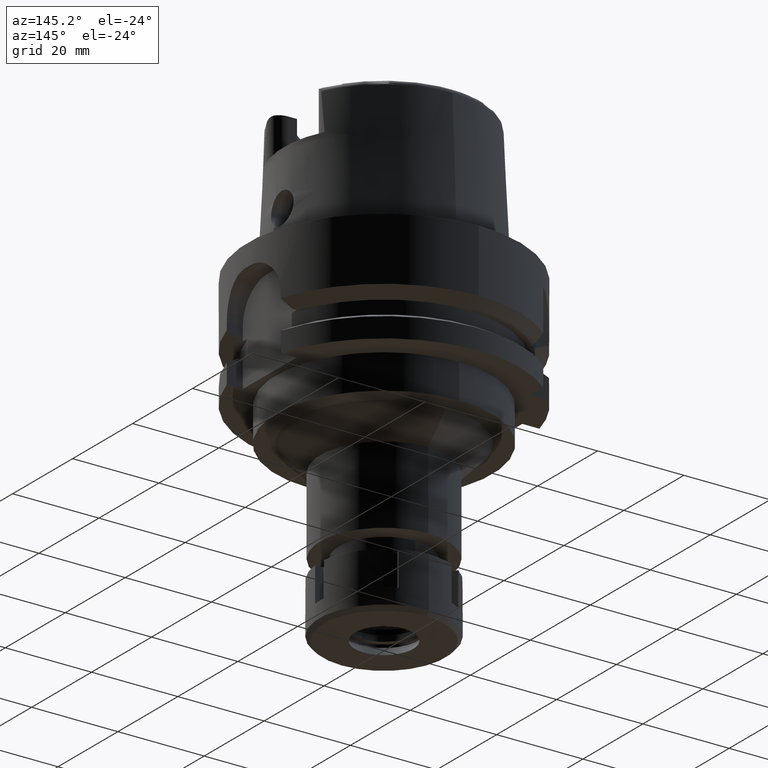
[diagram: clean part render]
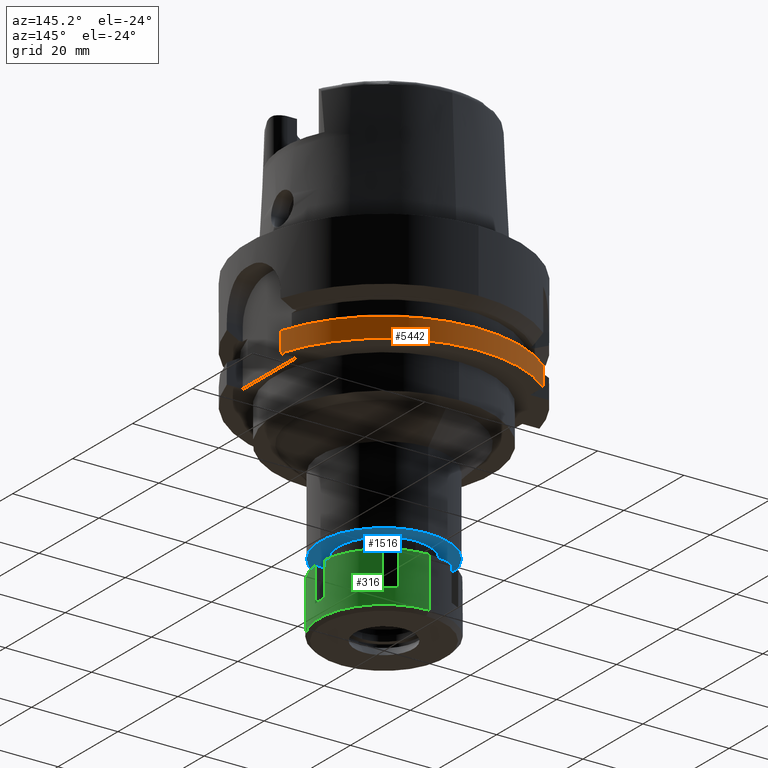
[diagram: same view with three faces highlighted in distinct colors, each labeled with its STEP entity id]
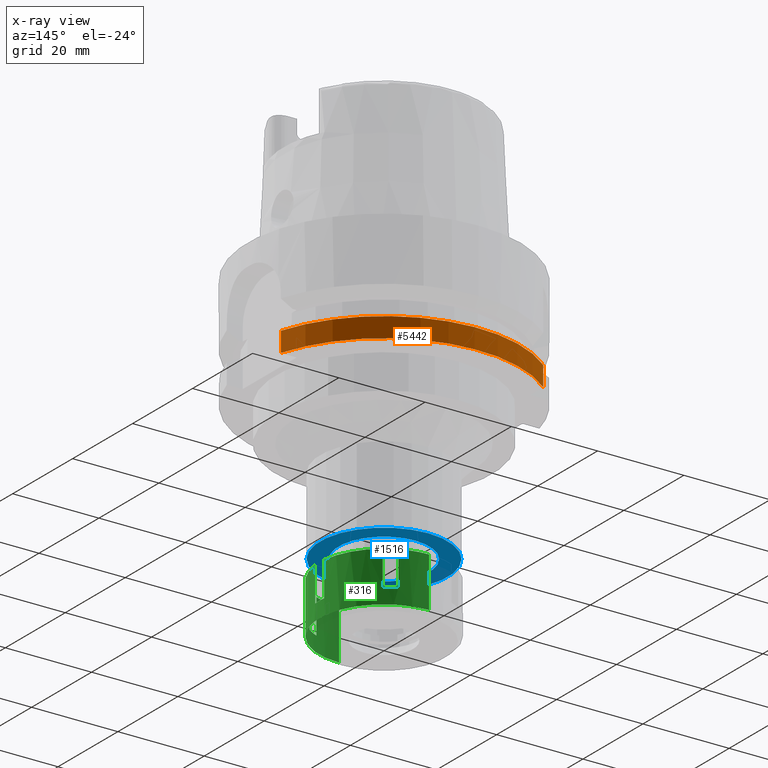
[diagram: x-ray of the same camera — body ghosted, the three highlighted faces saturated]
A machine part, auxiliary view with three faces highlighted in distinct colors.
The next image is the same camera in x-ray (body ghosted, the three faces saturated) — at least one of them is partly hidden behind the body in this view.
Their STEP definitions:

[orange] entity #5442 — the highlighted cylindrical surface (partial cylindrical patch) has radius 31.5 mm, axis along (0, 0, -1).
#144 = AXIS2_PLACEMENT_3D ( 'NONE', #3760, #3310, #4704 ) ;
#691 = VERTEX_POINT ( 'NONE', #5669 ) ;
#869 = VECTOR ( 'NONE', #5266, 1000.000000000000114 ) ;
#953 = DIRECTION ( 'NONE',  ( 0.0000000000000000000, 1.000000000000000000, 0.0000000000000000000 ) ) ;
#1010 = VERTEX_POINT ( 'NONE', #4994 ) ;
#1134 = LINE ( 'NONE', #5884, #1245 ) ;
#1245 = VECTOR ( 'NONE', #3486, 1000.000000000000114 ) ;
#1288 = FACE_OUTER_BOUND ( 'NONE', #3707, .T. ) ;
#1341 = AXIS2_PLACEMENT_3D ( 'NONE', #4342, #5391, #953 ) ;
#1584 = ORIENTED_EDGE ( 'NONE', *, *, #2673, .F. ) ;
#1610 = ORIENTED_EDGE ( 'NONE', *, *, #5441, .T. ) ;
#1669 = ORIENTED_EDGE ( 'NONE', *, *, #2370, .T. ) ;
#1705 = VERTEX_POINT ( 'NONE', #3521 ) ;
#1823 = DIRECTION ( 'NONE',  ( 0.0000000000000000000, 0.0000000000000000000, -1.000000000000000000 ) ) ;
#2370 = EDGE_CURVE ( 'NONE', #691, #1010, #3781, .T. ) ;
#2589 = AXIS2_PLACEMENT_3D ( 'NONE', #6151, #1823, #6175 ) ;
#2673 = EDGE_CURVE ( 'NONE', #691, #5131, #1134, .T. ) ;
#3310 = DIRECTION ( 'NONE',  ( 0.0000000000000000000, 0.0000000000000000000, -1.000000000000000000 ) ) ;
#3461 = LINE ( 'NONE', #6195, #869 ) ;
#3486 = DIRECTION ( 'NONE',  ( 9.636716617729993918E-09, -3.232221676920998126E-08, 0.9999999999999994449 ) ) ;
#3521 = CARTESIAN_POINT ( 'NONE',  ( -19.99999697716999947, 24.33618953150000053, -21.37748823999999814 ) ) ;
#3707 = EDGE_LOOP ( 'NONE', ( #1610, #1584, #1669, #3764 ) ) ;
#3760 = CARTESIAN_POINT ( 'NONE',  ( 0.0000000000000000000, 1.677766114831999956E-14, 37.00000000000000000 ) ) ;
#3764 = ORIENTED_EDGE ( 'NONE', *, *, #4760, .F. ) ;
#3781 = CIRCLE ( 'NONE', #1341, 31.50000000000000000 ) ;
#4342 = CARTESIAN_POINT ( 'NONE',  ( 0.0000000000000000000, 1.677766114831999956E-14, -26.00000000000000000 ) ) ;
#4704 = DIRECTION ( 'NONE',  ( 0.0000000000000000000, -1.000000000000000000, 0.0000000000000000000 ) ) ;
#4760 = EDGE_CURVE ( 'NONE', #1705, #1010, #3461, .T. ) ;
#4994 = CARTESIAN_POINT ( 'NONE',  ( -20.00000000000000000, 24.33618704727999926, -26.00000000000000000 ) ) ;
#5131 = VERTEX_POINT ( 'NONE', #5132 ) ;
#5132 = CARTESIAN_POINT ( 'NONE',  ( 30.18691774079000112, 8.999999850590000960, -21.37749786974000088 ) ) ;
#5266 = DIRECTION ( 'NONE',  ( -6.539363271905267819E-07, -5.374187853484219113E-07, -0.9999999999996417310 ) ) ;
#5391 = DIRECTION ( 'NONE',  ( 0.0000000000000000000, 0.0000000000000000000, 1.000000000000000000 ) ) ;
#5441 = EDGE_CURVE ( 'NONE', #1705, #5131, #6019, .T. ) ;
#5442 = ADVANCED_FACE ( 'NONE', ( #1288 ), #5714, .T. ) ;
#5669 = CARTESIAN_POINT ( 'NONE',  ( 30.18691769625000276, 9.000000000000000000, -26.00000000000000000 ) ) ;
#5714 = CYLINDRICAL_SURFACE ( 'NONE', #144, 31.50000000000000000 ) ;
#5884 = CARTESIAN_POINT ( 'NONE',  ( 30.18691769625000276, 9.000000000000000000, -26.00000000000000000 ) ) ;
#6019 = CIRCLE ( 'NONE', #2589, 31.50000000000000711 ) ;
#6151 = CARTESIAN_POINT ( 'NONE',  ( 0.0000000000000000000, 0.0000000000000000000, -21.37749907476000288 ) ) ;
#6175 = DIRECTION ( 'NONE',  ( -0.6349206349206079070, 0.7725773665802099233, 0.0000000000000000000 ) ) ;
#6195 = CARTESIAN_POINT ( 'NONE',  ( -19.99999697716999947, 24.33618953150000053, -21.37748823999999814 ) ) ;

[blue] entity #1516 — the highlighted planar face has unit normal (0, 0, -1).
#138 = EDGE_LOOP ( 'NONE', ( #1103, #1366 ) ) ;
#240 = DIRECTION ( 'NONE',  ( 0.0000000000000000000, 0.0000000000000000000, -1.000000000000000000 ) ) ;
#637 = AXIS2_PLACEMENT_3D ( 'NONE', #2451, #1535, #5406 ) ;
#697 = CARTESIAN_POINT ( 'NONE',  ( 0.0000000000000000000, -10.50000000000000000, -58.00000000000000000 ) ) ;
#716 = DIRECTION ( 'NONE',  ( 0.0000000000000000000, 0.0000000000000000000, -1.000000000000000000 ) ) ;
#1041 = AXIS2_PLACEMENT_3D ( 'NONE', #2817, #3349, #4772 ) ;
#1103 = ORIENTED_EDGE ( 'NONE', *, *, #2065, .F. ) ;
#1366 = ORIENTED_EDGE ( 'NONE', *, *, #2985, .F. ) ;
#1498 = CARTESIAN_POINT ( 'NONE',  ( 0.0000000000000000000, 10.50000000000000000, -58.00000000000000000 ) ) ;
#1516 = ADVANCED_FACE ( 'NONE', ( #3294, #3354 ), #5230, .T. ) ;
#1535 = DIRECTION ( 'NONE',  ( 0.0000000000000000000, 0.0000000000000000000, 1.000000000000000000 ) ) ;
#1553 = CIRCLE ( 'NONE', #1041, 14.75000000000000000 ) ;
#2059 = AXIS2_PLACEMENT_3D ( 'NONE', #6160, #240, #3650 ) ;
#2065 = EDGE_CURVE ( 'NONE', #3091, #3037, #3679, .T. ) ;
#2236 = ORIENTED_EDGE ( 'NONE', *, *, #3853, .F. ) ;
#2258 = CIRCLE ( 'NONE', #2059, 10.50000000000000000 ) ;
#2431 = CARTESIAN_POINT ( 'NONE',  ( 0.0000000000000000000, 14.75000000000000000, -58.00000000000000000 ) ) ;
#2444 = EDGE_LOOP ( 'NONE', ( #4243, #2236 ) ) ;
#2451 = CARTESIAN_POINT ( 'NONE',  ( 0.0000000000000000000, 1.677766114831999956E-14, -58.00000000000000000 ) ) ;
#2609 = VERTEX_POINT ( 'NONE', #697 ) ;
#2817 = CARTESIAN_POINT ( 'NONE',  ( 0.0000000000000000000, 1.677766114831999956E-14, -58.00000000000000000 ) ) ;
#2842 = EDGE_CURVE ( 'NONE', #6192, #2609, #2258, .T. ) ;
#2888 = CARTESIAN_POINT ( 'NONE',  ( 0.0000000000000000000, 0.0000000000000000000, -58.00000000000000000 ) ) ;
#2985 = EDGE_CURVE ( 'NONE', #3037, #3091, #1553, .T. ) ;
#3037 = VERTEX_POINT ( 'NONE', #5351 ) ;
#3091 = VERTEX_POINT ( 'NONE', #2431 ) ;
#3154 = DIRECTION ( 'NONE',  ( 0.0000000000000000000, -1.000000000000000000, 0.0000000000000000000 ) ) ;
#3294 = FACE_OUTER_BOUND ( 'NONE', #138, .T. ) ;
#3349 = DIRECTION ( 'NONE',  ( 0.0000000000000000000, 0.0000000000000000000, 1.000000000000000000 ) ) ;
#3354 = FACE_BOUND ( 'NONE', #2444, .T. ) ;
#3487 = AXIS2_PLACEMENT_3D ( 'NONE', #4674, #716, #3154 ) ;
#3650 = DIRECTION ( 'NONE',  ( 0.0000000000000000000, 1.000000000000000000, 0.0000000000000000000 ) ) ;
#3679 = CIRCLE ( 'NONE', #637, 14.75000000000000000 ) ;
#3853 = EDGE_CURVE ( 'NONE', #2609, #6192, #5306, .T. ) ;
#4243 = ORIENTED_EDGE ( 'NONE', *, *, #2842, .F. ) ;
#4674 = CARTESIAN_POINT ( 'NONE',  ( 0.0000000000000000000, 1.677766114831999956E-14, -58.00000000000000000 ) ) ;
#4772 = DIRECTION ( 'NONE',  ( 0.0000000000000000000, -1.000000000000000000, 0.0000000000000000000 ) ) ;
#4869 = DIRECTION ( 'NONE',  ( 0.0000000000000000000, 0.0000000000000000000, -1.000000000000000000 ) ) ;
#5230 = PLANE ( 'NONE',  #5428 ) ;
#5261 = DIRECTION ( 'NONE',  ( 0.0000000000000000000, -1.000000000000000000, 0.0000000000000000000 ) ) ;
#5306 = CIRCLE ( 'NONE', #3487, 10.50000000000000000 ) ;
#5351 = CARTESIAN_POINT ( 'NONE',  ( 0.0000000000000000000, -14.75000000000000000, -58.00000000000000000 ) ) ;
#5406 = DIRECTION ( 'NONE',  ( 0.0000000000000000000, 1.000000000000000000, 0.0000000000000000000 ) ) ;
#5428 = AXIS2_PLACEMENT_3D ( 'NONE', #2888, #4869, #5261 ) ;
#6160 = CARTESIAN_POINT ( 'NONE',  ( 0.0000000000000000000, 1.677766114831999956E-14, -58.00000000000000000 ) ) ;
#6192 = VERTEX_POINT ( 'NONE', #1498 ) ;

[green] entity #316 — the highlighted cylindrical surface (partial cylindrical patch) has radius 15 mm, axis along (0, 0, -1).
#33 = CYLINDRICAL_SURFACE ( 'NONE', #4639, 15.00000000000000000 ) ;
#192 = VERTEX_POINT ( 'NONE', #229 ) ;
#229 = CARTESIAN_POINT ( 'NONE',  ( 0.0000000000000000000, -15.00000000000000000, 0.0000000000000000000 ) ) ;
#246 = CARTESIAN_POINT ( 'NONE',  ( 14.92481155659999992, 1.500000000000000000, -8.000000000000000000 ) ) ;
#281 = DIRECTION ( 'NONE',  ( 0.0000000000000000000, 0.0000000000000000000, -1.000000000000000000 ) ) ;
#300 = ORIENTED_EDGE ( 'NONE', *, *, #946, .F. ) ;
#307 = VERTEX_POINT ( 'NONE', #3761 ) ;
#314 = ORIENTED_EDGE ( 'NONE', *, *, #5358, .T. ) ;
#316 = ADVANCED_FACE ( 'NONE', ( #1601 ), #33, .T. ) ;
#337 = VERTEX_POINT ( 'NONE', #4637 ) ;
#344 = ORIENTED_EDGE ( 'NONE', *, *, #5500, .T. ) ;
#387 = CARTESIAN_POINT ( 'NONE',  ( 0.0000000000000000000, 0.0000000000000000000, -11.59999999999999964 ) ) ;
#412 = ORIENTED_EDGE ( 'NONE', *, *, #2491, .F. ) ;
#465 = VECTOR ( 'NONE', #3547, 1000.000000000000000 ) ;
#590 = CARTESIAN_POINT ( 'NONE',  ( 0.0000000000000000000, 0.0000000000000000000, 0.0000000000000000000 ) ) ;
#627 = ORIENTED_EDGE ( 'NONE', *, *, #3482, .T. ) ;
#653 = DIRECTION ( 'NONE',  ( 0.0000000000000000000, 0.0000000000000000000, -1.000000000000000000 ) ) ;
#654 = CARTESIAN_POINT ( 'NONE',  ( 0.0000000000000000000, 0.0000000000000000000, 0.0000000000000000000 ) ) ;
#710 = EDGE_CURVE ( 'NONE', #192, #2463, #2309, .T. ) ;
#820 = VERTEX_POINT ( 'NONE', #1105 ) ;
#838 = DIRECTION ( 'NONE',  ( 0.0000000000000000000, 0.0000000000000000000, 1.000000000000000000 ) ) ;
#876 = AXIS2_PLACEMENT_3D ( 'NONE', #3055, #653, #2585 ) ;
#943 = VECTOR ( 'NONE', #3326, 1000.000000000000000 ) ;
#946 = EDGE_CURVE ( 'NONE', #4432, #3507, #3418, .T. ) ;
#1037 = CARTESIAN_POINT ( 'NONE',  ( 8.761443883976001601, -12.17526595470999951, -8.000000000000000000 ) ) ;
#1046 = DIRECTION ( 'NONE',  ( 0.5840962589317197917, 0.8116843969807286951, 0.0000000000000000000 ) ) ;
#1064 = ORIENTED_EDGE ( 'NONE', *, *, #1217, .F. ) ;
#1082 = AXIS2_PLACEMENT_3D ( 'NONE', #2474, #5890, #4409 ) ;
#1105 = CARTESIAN_POINT ( 'NONE',  ( 6.163367672623000004, 13.67526595470999951, -8.000000000000000000 ) ) ;
#1176 = VECTOR ( 'NONE', #5353, 1000.000000000000000 ) ;
#1217 = EDGE_CURVE ( 'NONE', #337, #5757, #2591, .T. ) ;
#1257 = CIRCLE ( 'NONE', #5903, 15.00000000000000000 ) ;
#1276 = ORIENTED_EDGE ( 'NONE', *, *, #6214, .T. ) ;
#1284 = AXIS2_PLACEMENT_3D ( 'NONE', #3947, #1463, #1046 ) ;
#1300 = CARTESIAN_POINT ( 'NONE',  ( 0.0000000000000000000, -15.00000000000000000, 0.0000000000000000000 ) ) ;
#1316 = CARTESIAN_POINT ( 'NONE',  ( 0.0000000000000000000, 0.0000000000000000000, 0.0000000000000000000 ) ) ;
#1322 = VERTEX_POINT ( 'NONE', #1391 ) ;
#1391 = CARTESIAN_POINT ( 'NONE',  ( 14.92481155659999992, 1.500000000000000000, 0.0000000000000000000 ) ) ;
#1412 = DIRECTION ( 'NONE',  ( 0.9949874371066197432, -0.1000000000000019623, 0.0000000000000000000 ) ) ;
#1463 = DIRECTION ( 'NONE',  ( 0.0000000000000000000, 0.0000000000000000000, -1.000000000000000000 ) ) ;
#1470 = CARTESIAN_POINT ( 'NONE',  ( 8.761443883976001601, 12.17526595470999951, -8.000000000000000000 ) ) ;
#1493 = LINE ( 'NONE', #5362, #4378 ) ;
#1593 = CARTESIAN_POINT ( 'NONE',  ( 8.761443883976001601, 12.17526595470999951, 0.0000000000000000000 ) ) ;
#1601 = FACE_OUTER_BOUND ( 'NONE', #5968, .T. ) ;
#1614 = EDGE_CURVE ( 'NONE', #3569, #5535, #5948, .T. ) ;
#1683 = VECTOR ( 'NONE', #6061, 1000.000000000000000 ) ;
#1745 = EDGE_CURVE ( 'NONE', #3327, #2079, #4523, .T. ) ;
#1821 = ORIENTED_EDGE ( 'NONE', *, *, #1614, .F. ) ;
#1824 = DIRECTION ( 'NONE',  ( 0.5840962589317860720, -0.8116843969806811776, 0.0000000000000000000 ) ) ;
#1829 = CARTESIAN_POINT ( 'NONE',  ( 0.0000000000000000000, 15.00000000000000000, 0.0000000000000000000 ) ) ;
#1882 = AXIS2_PLACEMENT_3D ( 'NONE', #1316, #1888, #1412 ) ;
#1888 = DIRECTION ( 'NONE',  ( 0.0000000000000000000, 0.0000000000000000000, -1.000000000000000000 ) ) ;
#1921 = EDGE_CURVE ( 'NONE', #307, #192, #3162, .T. ) ;
#1929 = CARTESIAN_POINT ( 'NONE',  ( 0.0000000000000000000, 15.00000000000000000, 0.0000000000000000000 ) ) ;
#2028 = CARTESIAN_POINT ( 'NONE',  ( 6.163367672621999915, -13.67526595470999951, -8.000000000000000000 ) ) ;
#2039 = DIRECTION ( 'NONE',  ( 0.0000000000000000000, 0.0000000000000000000, -1.000000000000000000 ) ) ;
#2045 = DIRECTION ( 'NONE',  ( 0.0000000000000000000, 0.0000000000000000000, -1.000000000000000000 ) ) ;
#2064 = AXIS2_PLACEMENT_3D ( 'NONE', #5514, #281, #5955 ) ;
#2079 = VERTEX_POINT ( 'NONE', #2996 ) ;
#2184 = CIRCLE ( 'NONE', #1882, 15.00000000000000533 ) ;
#2235 = ORIENTED_EDGE ( 'NONE', *, *, #6189, .T. ) ;
#2309 = LINE ( 'NONE', #1300, #3328 ) ;
#2358 = ORIENTED_EDGE ( 'NONE', *, *, #3524, .T. ) ;
#2394 = VECTOR ( 'NONE', #5032, 1000.000000000000000 ) ;
#2405 = EDGE_CURVE ( 'NONE', #3539, #1322, #5791, .T. ) ;
#2411 = CARTESIAN_POINT ( 'NONE',  ( 0.0000000000000000000, -15.00000000000000000, -11.59999999999999964 ) ) ;
#2448 = AXIS2_PLACEMENT_3D ( 'NONE', #654, #2045, #3927 ) ;
#2463 = VERTEX_POINT ( 'NONE', #2411 ) ;
#2468 = DIRECTION ( 'NONE',  ( 0.0000000000000000000, 0.0000000000000000000, -1.000000000000000000 ) ) ;
#2474 = CARTESIAN_POINT ( 'NONE',  ( 0.0000000000000000000, 0.0000000000000000000, -8.000000000000000000 ) ) ;
#2491 = EDGE_CURVE ( 'NONE', #307, #2533, #1493, .T. ) ;
#2533 = VERTEX_POINT ( 'NONE', #2028 ) ;
#2585 = DIRECTION ( 'NONE',  ( 0.0000000000000000000, 1.000000000000000000, 0.0000000000000000000 ) ) ;
#2591 = LINE ( 'NONE', #3062, #465 ) ;
#2638 = CARTESIAN_POINT ( 'NONE',  ( 6.163367672623000004, 13.67526595470999951, 0.0000000000000000000 ) ) ;
#2694 = DIRECTION ( 'NONE',  ( 0.0000000000000000000, 0.0000000000000000000, 1.000000000000000000 ) ) ;
#2695 = EDGE_CURVE ( 'NONE', #820, #3575, #4682, .T. ) ;
#2892 = CARTESIAN_POINT ( 'NONE',  ( 14.92481155659999992, 1.500000000000000000, -8.000000000000000000 ) ) ;
#2996 = CARTESIAN_POINT ( 'NONE',  ( 8.761443883976001601, -12.17526595470999951, 0.0000000000000000000 ) ) ;
#3017 = ORIENTED_EDGE ( 'NONE', *, *, #2405, .F. ) ;
#3055 = CARTESIAN_POINT ( 'NONE',  ( 0.0000000000000000000, 0.0000000000000000000, 0.0000000000000000000 ) ) ;
#3062 = CARTESIAN_POINT ( 'NONE',  ( 14.92481155659999992, -1.500000000000000000, 0.0000000000000000000 ) ) ;
#3160 = ORIENTED_EDGE ( 'NONE', *, *, #710, .T. ) ;
#3162 = CIRCLE ( 'NONE', #2448, 14.99999999999999645 ) ;
#3183 = AXIS2_PLACEMENT_3D ( 'NONE', #4794, #4240, #1824 ) ;
#3304 = DIRECTION ( 'NONE',  ( 0.0000000000000000000, -1.000000000000000000, 0.0000000000000000000 ) ) ;
#3326 = DIRECTION ( 'NONE',  ( 0.0000000000000000000, 0.0000000000000000000, 1.000000000000000000 ) ) ;
#3327 = VERTEX_POINT ( 'NONE', #4642 ) ;
#3328 = VECTOR ( 'NONE', #3353, 1000.000000000000000 ) ;
#3353 = DIRECTION ( 'NONE',  ( 0.0000000000000000000, 0.0000000000000000000, -1.000000000000000000 ) ) ;
#3418 = LINE ( 'NONE', #1929, #1176 ) ;
#3482 = EDGE_CURVE ( 'NONE', #2463, #3507, #1257, .T. ) ;
#3507 = VERTEX_POINT ( 'NONE', #4528 ) ;
#3524 = EDGE_CURVE ( 'NONE', #3539, #5757, #6193, .T. ) ;
#3539 = VERTEX_POINT ( 'NONE', #246 ) ;
#3547 = DIRECTION ( 'NONE',  ( 0.0000000000000000000, 0.0000000000000000000, -1.000000000000000000 ) ) ;
#3569 = VERTEX_POINT ( 'NONE', #1593 ) ;
#3575 = VERTEX_POINT ( 'NONE', #2638 ) ;
#3598 = CIRCLE ( 'NONE', #876, 15.00000000000000000 ) ;
#3761 = CARTESIAN_POINT ( 'NONE',  ( 6.163367672621999915, -13.67526595470999951, 0.0000000000000000000 ) ) ;
#3927 = DIRECTION ( 'NONE',  ( 0.4108911781748131320, -0.9116843969807282289, 0.0000000000000000000 ) ) ;
#3941 = EDGE_CURVE ( 'NONE', #3327, #2533, #6194, .T. ) ;
#3947 = CARTESIAN_POINT ( 'NONE',  ( 0.0000000000000000000, 0.0000000000000000000, 0.0000000000000000000 ) ) ;
#3948 = ORIENTED_EDGE ( 'NONE', *, *, #3941, .T. ) ;
#3965 = CARTESIAN_POINT ( 'NONE',  ( 8.761443883976001601, 12.17526595470999951, 0.0000000000000000000 ) ) ;
#4052 = ORIENTED_EDGE ( 'NONE', *, *, #1921, .T. ) ;
#4240 = DIRECTION ( 'NONE',  ( 0.0000000000000000000, 0.0000000000000000000, -1.000000000000000000 ) ) ;
#4378 = VECTOR ( 'NONE', #2468, 1000.000000000000000 ) ;
#4409 = DIRECTION ( 'NONE',  ( 0.4108911781748959546, 0.9116843969806908143, 0.0000000000000000000 ) ) ;
#4432 = VERTEX_POINT ( 'NONE', #1829 ) ;
#4518 = CIRCLE ( 'NONE', #1082, 15.00000000000000178 ) ;
#4523 = LINE ( 'NONE', #1037, #1683 ) ;
#4528 = CARTESIAN_POINT ( 'NONE',  ( 0.0000000000000000000, 15.00000000000000000, -11.59999999999999964 ) ) ;
#4601 = CARTESIAN_POINT ( 'NONE',  ( 14.92481155659999992, -1.500000000000000000, -8.000000000000000000 ) ) ;
#4624 = CARTESIAN_POINT ( 'NONE',  ( 6.163367672623000004, 13.67526595470999951, -8.000000000000000000 ) ) ;
#4626 = CIRCLE ( 'NONE', #1284, 15.00000000000000355 ) ;
#4637 = CARTESIAN_POINT ( 'NONE',  ( 14.92481155659999992, -1.500000000000000000, 0.0000000000000000000 ) ) ;
#4639 = AXIS2_PLACEMENT_3D ( 'NONE', #590, #2039, #5965 ) ;
#4642 = CARTESIAN_POINT ( 'NONE',  ( 8.761443883976001601, -12.17526595470999951, -8.000000000000000000 ) ) ;
#4682 = LINE ( 'NONE', #4624, #4785 ) ;
#4785 = VECTOR ( 'NONE', #2694, 1000.000000000000000 ) ;
#4794 = CARTESIAN_POINT ( 'NONE',  ( 0.0000000000000000000, 0.0000000000000000000, -8.000000000000000000 ) ) ;
#4837 = ORIENTED_EDGE ( 'NONE', *, *, #1745, .F. ) ;
#5032 = DIRECTION ( 'NONE',  ( 0.0000000000000000000, 0.0000000000000000000, -1.000000000000000000 ) ) ;
#5353 = DIRECTION ( 'NONE',  ( 0.0000000000000000000, 0.0000000000000000000, -1.000000000000000000 ) ) ;
#5358 = EDGE_CURVE ( 'NONE', #4432, #3575, #3598, .T. ) ;
#5362 = CARTESIAN_POINT ( 'NONE',  ( 6.163367672621999915, -13.67526595470999951, 0.0000000000000000000 ) ) ;
#5500 = EDGE_CURVE ( 'NONE', #337, #2079, #2184, .T. ) ;
#5514 = CARTESIAN_POINT ( 'NONE',  ( 0.0000000000000000000, 0.0000000000000000000, -8.000000000000000000 ) ) ;
#5535 = VERTEX_POINT ( 'NONE', #1470 ) ;
#5757 = VERTEX_POINT ( 'NONE', #4601 ) ;
#5791 = LINE ( 'NONE', #2892, #943 ) ;
#5854 = ORIENTED_EDGE ( 'NONE', *, *, #2695, .F. ) ;
#5890 = DIRECTION ( 'NONE',  ( 0.0000000000000000000, 0.0000000000000000000, -1.000000000000000000 ) ) ;
#5903 = AXIS2_PLACEMENT_3D ( 'NONE', #387, #838, #3304 ) ;
#5948 = LINE ( 'NONE', #3965, #2394 ) ;
#5955 = DIRECTION ( 'NONE',  ( 0.9949874371066197432, 0.1000000000000019623, 0.0000000000000000000 ) ) ;
#5965 = DIRECTION ( 'NONE',  ( 0.0000000000000000000, -1.000000000000000000, 0.0000000000000000000 ) ) ;
#5968 = EDGE_LOOP ( 'NONE', ( #1821, #1276, #3017, #2358, #1064, #344, #4837, #3948, #412, #4052, #3160, #627, #300, #314, #5854, #2235 ) ) ;
#6061 = DIRECTION ( 'NONE',  ( 0.0000000000000000000, 0.0000000000000000000, 1.000000000000000000 ) ) ;
#6189 = EDGE_CURVE ( 'NONE', #820, #5535, #4518, .T. ) ;
#6193 = CIRCLE ( 'NONE', #2064, 15.00000000000000533 ) ;
#6194 = CIRCLE ( 'NONE', #3183, 14.99999999999999645 ) ;
#6214 = EDGE_CURVE ( 'NONE', #3569, #1322, #4626, .T. ) ;